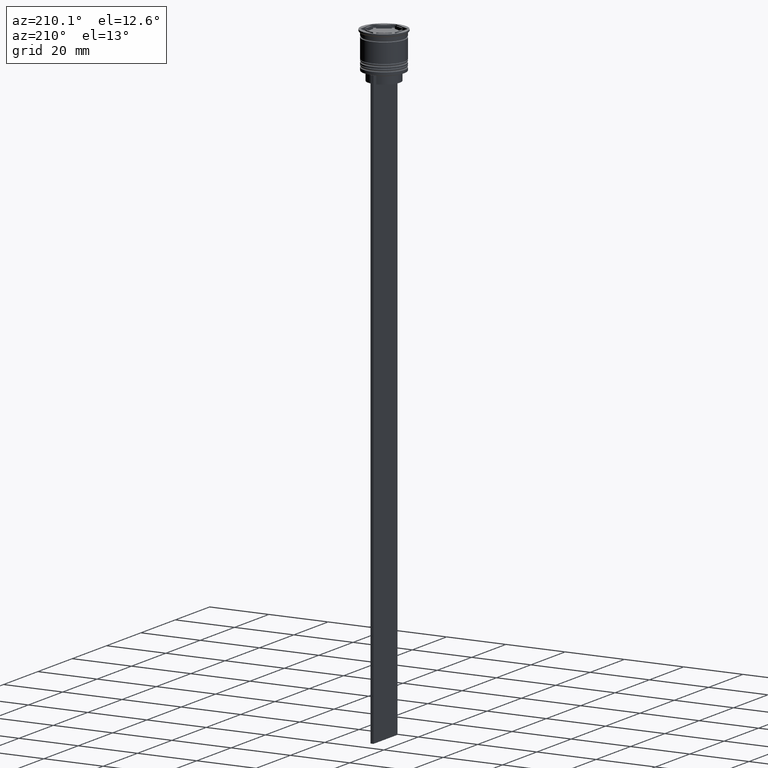
[diagram: clean part render]
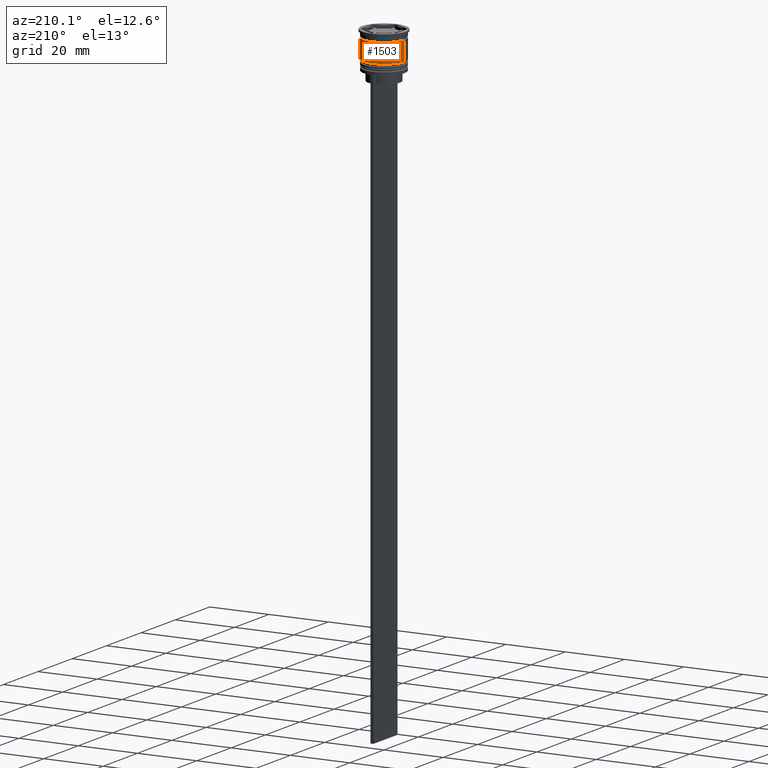
[diagram: same view with one face highlighted and labeled with its STEP entity id]
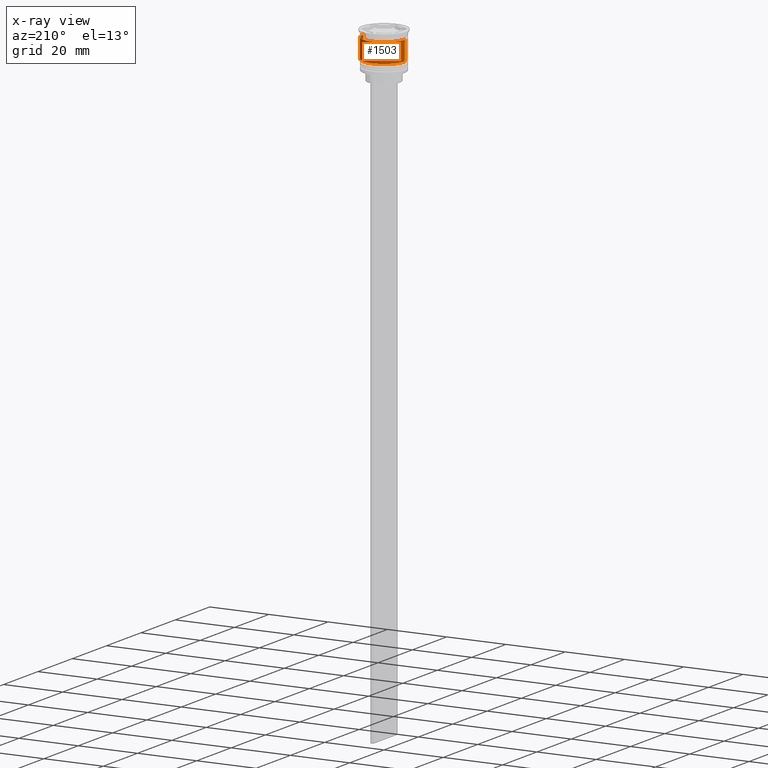
[diagram: x-ray of the same camera — body ghosted, the highlighted face saturated]
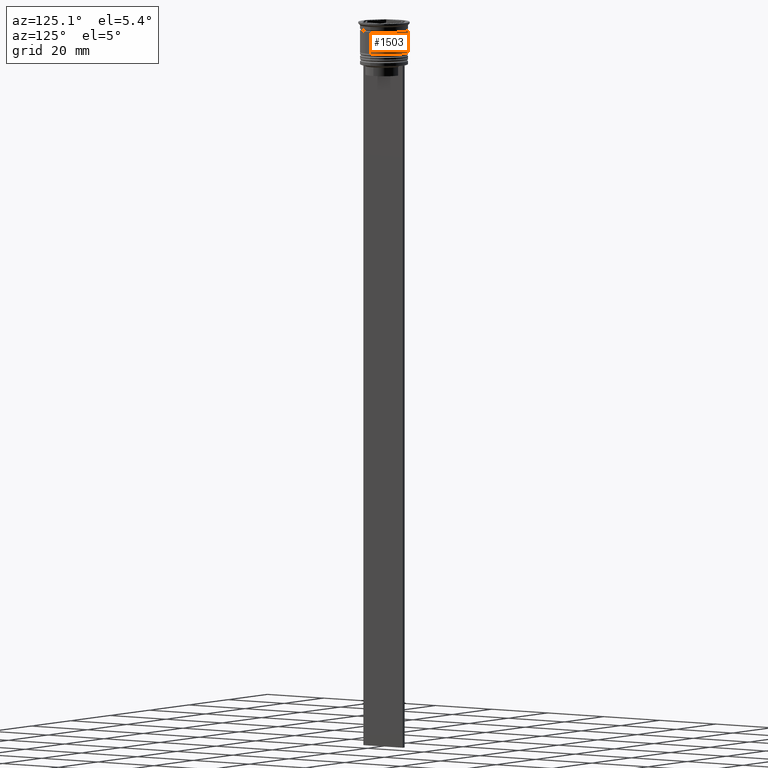
[diagram: same view with one face highlighted and labeled with its STEP entity id]
A machine part, auxiliary view. The second image highlights one B-rep face of the part: STEP entity #1503.
The next image is the same camera in x-ray: the body ghosted, the highlighted face saturated — about 0% of this face is hidden behind the body in this view.
A second angle (auxiliary view) of the same face is appended — the face is thin or edge-on in the first view.
In plain terms, the highlighted cylindrical surface (edge-blend (fillet) strip) has radius 7 mm, axis along (-0, -0, 1).
Its self-contained STEP definition (entity closure, byte-faithful):
#142 = DIRECTION ( 'NONE',  ( -0.000000000000000000, -0.000000000000000000, 1.000000000000000000 ) ) ;
#186 = CARTESIAN_POINT ( 'NONE',  ( 6.999999999999999112, 0.000000000000000000, 0.000000000000000000 ) ) ;
#428 = EDGE_LOOP ( 'NONE', ( #1121, #1363, #2347, #2096 ) ) ;
#464 = FACE_OUTER_BOUND ( 'NONE', #428, .T. ) ;
#474 = VECTOR ( 'NONE', #1133, 1000.000000000000000 ) ;
#494 = DIRECTION ( 'NONE',  ( -0.000000000000000000, -0.000000000000000000, 1.000000000000000000 ) ) ;
#728 = DIRECTION ( 'NONE',  ( 1.000000000000000000, 0.000000000000000000, 0.000000000000000000 ) ) ;
#740 = CARTESIAN_POINT ( 'NONE',  ( 0.000000000000000000, 0.000000000000000000, -9.000000000000001776 ) ) ;
#799 = AXIS2_PLACEMENT_3D ( 'NONE', #740, #142, #728 ) ;
#896 = CARTESIAN_POINT ( 'NONE',  ( 7.000000000000000888, 0.000000000000000000, -9.000000000000001776 ) ) ;
#961 = CIRCLE ( 'NONE', #1043, 6.999999999999997335 ) ;
#985 = CARTESIAN_POINT ( 'NONE',  ( -6.999999999999997335, 8.572527594031471218E-16, -2.500000000000000444 ) ) ;
#1019 = VERTEX_POINT ( 'NONE', #1055 ) ;
#1043 = AXIS2_PLACEMENT_3D ( 'NONE', #1478, #494, #2472 ) ;
#1055 = CARTESIAN_POINT ( 'NONE',  ( 6.999999999999997335, 0.000000000000000000, -2.500000000000000444 ) ) ;
#1061 = DIRECTION ( 'NONE',  ( -0.000000000000000000, -0.000000000000000000, 1.000000000000000000 ) ) ;
#1112 = EDGE_CURVE ( 'NONE', #2081, #1019, #2429, .T. ) ;
#1121 = ORIENTED_EDGE ( 'NONE', *, *, #1660, .T. ) ;
#1133 = DIRECTION ( 'NONE',  ( -0.000000000000000000, -0.000000000000000000, 1.000000000000000000 ) ) ;
#1147 = EDGE_CURVE ( 'NONE', #1416, #2119, #2287, .T. ) ;
#1157 = VECTOR ( 'NONE', #2079, 1000.000000000000000 ) ;
#1229 = CYLINDRICAL_SURFACE ( 'NONE', #2340, 6.999999999999999112 ) ;
#1363 = ORIENTED_EDGE ( 'NONE', *, *, #1147, .T. ) ;
#1416 = VERTEX_POINT ( 'NONE', #1417 ) ;
#1417 = CARTESIAN_POINT ( 'NONE',  ( -7.000000000000000888, 8.572527594031474176E-16, -9.000000000000001776 ) ) ;
#1478 = CARTESIAN_POINT ( 'NONE',  ( 0.000000000000000000, 0.000000000000000000, -2.500000000000000444 ) ) ;
#1503 = ADVANCED_FACE ( 'NONE', ( #464 ), #1229, .T. ) ;
#1653 = DIRECTION ( 'NONE',  ( 1.000000000000000000, 0.000000000000000000, 0.000000000000000000 ) ) ;
#1660 = EDGE_CURVE ( 'NONE', #2081, #1416, #1812, .T. ) ;
#1812 = CIRCLE ( 'NONE', #799, 7.000000000000000888 ) ;
#1999 = CARTESIAN_POINT ( 'NONE',  ( 0.000000000000000000, 0.000000000000000000, 0.000000000000000000 ) ) ;
#2079 = DIRECTION ( 'NONE',  ( -0.000000000000000000, -0.000000000000000000, 1.000000000000000000 ) ) ;
#2081 = VERTEX_POINT ( 'NONE', #896 ) ;
#2096 = ORIENTED_EDGE ( 'NONE', *, *, #1112, .F. ) ;
#2119 = VERTEX_POINT ( 'NONE', #985 ) ;
#2287 = LINE ( 'NONE', #2467, #474 ) ;
#2340 = AXIS2_PLACEMENT_3D ( 'NONE', #1999, #1061, #1653 ) ;
#2347 = ORIENTED_EDGE ( 'NONE', *, *, #2381, .F. ) ;
#2381 = EDGE_CURVE ( 'NONE', #1019, #2119, #961, .T. ) ;
#2429 = LINE ( 'NONE', #186, #1157 ) ;
#2467 = CARTESIAN_POINT ( 'NONE',  ( -6.999999999999999112, 8.572527594031472204E-16, 0.000000000000000000 ) ) ;
#2472 = DIRECTION ( 'NONE',  ( 1.000000000000000000, 0.000000000000000000, 0.000000000000000000 ) ) ;